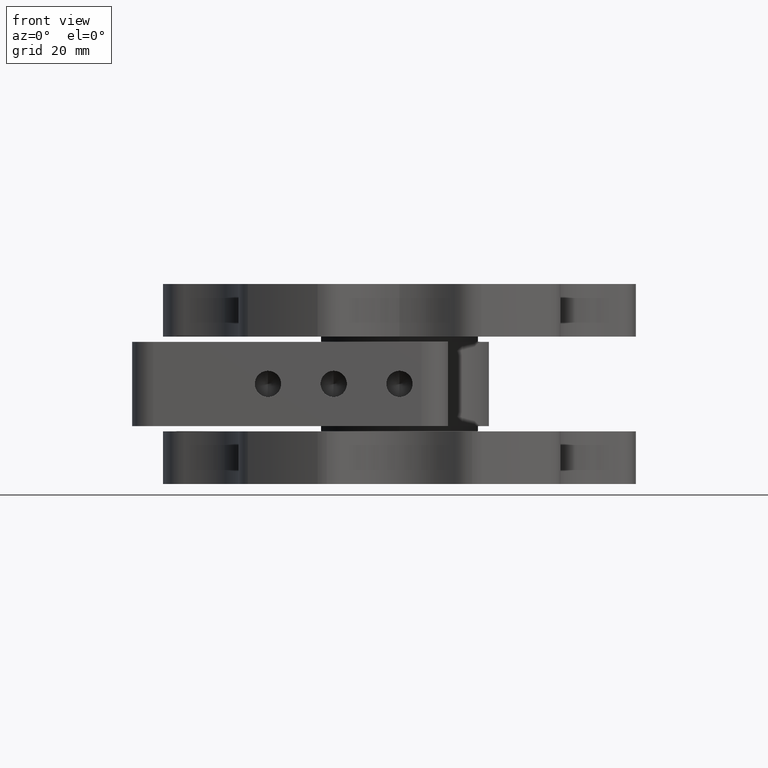
[diagram: clean part render]
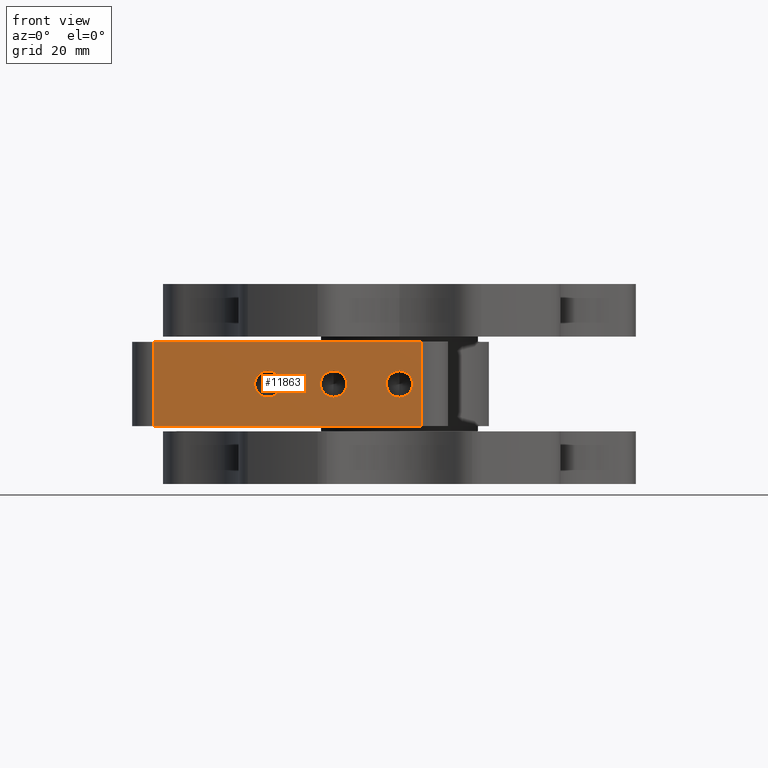
[diagram: same view with one face highlighted and labeled with its STEP entity id]
A machine part, front view. The second image highlights one B-rep face of the part: STEP entity #11863.
In plain terms, the highlighted planar face has unit normal (0, -1, 0).
Its self-contained STEP definition (entity closure, byte-faithful):
#33 = CIRCLE ( 'NONE', #21549, 2.499999999999990200 ) ;
#310 = ORIENTED_EDGE ( 'NONE', *, *, #25842, .F. ) ;
#646 = CIRCLE ( 'NONE', #11980, 2.499999999999990200 ) ;
#661 = FACE_BOUND ( 'NONE', #1816, .T. ) ;
#842 = PLANE ( 'NONE',  #18888 ) ;
#1381 = VERTEX_POINT ( 'NONE', #22801 ) ;
#1723 = DIRECTION ( 'NONE',  ( -0.0000000000000000000, -1.000000000000000000, -0.0000000000000000000 ) ) ;
#1816 = EDGE_LOOP ( 'NONE', ( #21279, #26525 ) ) ;
#2513 = EDGE_LOOP ( 'NONE', ( #17948, #13038 ) ) ;
#2527 = AXIS2_PLACEMENT_3D ( 'NONE', #14021, #1723, #13861 ) ;
#2799 = VECTOR ( 'NONE', #3921, 1000.000000000000000 ) ;
#2974 = CARTESIAN_POINT ( 'NONE',  ( 1.382336511052891000E-014, -50.79999999999997600, -10.49999999999999100 ) ) ;
#3161 = CARTESIAN_POINT ( 'NONE',  ( 4.199999999999978000, -50.79999999999997600, 0.0000000000000000000 ) ) ;
#3518 = CARTESIAN_POINT ( 'NONE',  ( -16.91161726340149600, -50.79999999999998300, -16.00000000000000000 ) ) ;
#3739 = VERTEX_POINT ( 'NONE', #17080 ) ;
#3786 = EDGE_CURVE ( 'NONE', #1381, #12466, #15868, .T. ) ;
#3921 = DIRECTION ( 'NONE',  ( 0.0000000000000000000, 0.0000000000000000000, 1.000000000000000000 ) ) ;
#3983 = VERTEX_POINT ( 'NONE', #14309 ) ;
#4335 = ORIENTED_EDGE ( 'NONE', *, *, #20112, .T. ) ;
#5787 = ORIENTED_EDGE ( 'NONE', *, *, #26093, .F. ) ;
#5826 = DIRECTION ( 'NONE',  ( 0.0000000000000000000, 0.0000000000000000000, -1.000000000000000000 ) ) ;
#6392 = CARTESIAN_POINT ( 'NONE',  ( -46.80000000000000400, -50.79999999999999000, -16.00000000000000000 ) ) ;
#6416 = CARTESIAN_POINT ( 'NONE',  ( 1.412952681031574800E-014, -50.79999999999997600, -5.500000000000009800 ) ) ;
#6476 = VERTEX_POINT ( 'NONE', #3161 ) ;
#7222 = DIRECTION ( 'NONE',  ( 0.0000000000000000000, 0.0000000000000000000, -1.000000000000000000 ) ) ;
#7434 = AXIS2_PLACEMENT_3D ( 'NONE', #24238, #16114, #5826 ) ;
#7980 = VERTEX_POINT ( 'NONE', #19849 ) ;
#8185 = EDGE_CURVE ( 'NONE', #26269, #18877, #22859, .T. ) ;
#8791 = CARTESIAN_POINT ( 'NONE',  ( -16.91161726340149600, -50.79999999999998300, 0.0000000000000000000 ) ) ;
#8835 = DIRECTION ( 'NONE',  ( 1.000000000000000000, 2.721134864277345600E-016, 0.0000000000000000000 ) ) ;
#8878 = VECTOR ( 'NONE', #23037, 1000.000000000000000 ) ;
#9056 = CARTESIAN_POINT ( 'NONE',  ( -24.99999999999998600, -50.79999999999997600, -5.500000000000008000 ) ) ;
#9300 = VECTOR ( 'NONE', #23475, 1000.000000000000000 ) ;
#9446 = CARTESIAN_POINT ( 'NONE',  ( -24.99999999999998600, -50.79999999999997600, -8.000000000000000000 ) ) ;
#9671 = FACE_BOUND ( 'NONE', #13826, .T. ) ;
#9774 = ORIENTED_EDGE ( 'NONE', *, *, #13442, .T. ) ;
#10735 = DIRECTION ( 'NONE',  ( -0.0000000000000000000, -1.000000000000000000, -0.0000000000000000000 ) ) ;
#11863 = ADVANCED_FACE ( 'NONE', ( #12833, #9671, #661, #13781 ), #842, .T. ) ;
#11980 = AXIS2_PLACEMENT_3D ( 'NONE', #17539, #19597, #7222 ) ;
#12207 = LINE ( 'NONE', #25028, #25923 ) ;
#12466 = VERTEX_POINT ( 'NONE', #9056 ) ;
#12481 = LINE ( 'NONE', #3518, #9300 ) ;
#12833 = FACE_BOUND ( 'NONE', #2513, .T. ) ;
#12851 = CARTESIAN_POINT ( 'NONE',  ( 1.382336511052891000E-014, -50.79999999999997600, -8.000000000000000000 ) ) ;
#13008 = CARTESIAN_POINT ( 'NONE',  ( -16.91161726340149600, -50.79999999999998300, -16.00000000000000000 ) ) ;
#13038 = ORIENTED_EDGE ( 'NONE', *, *, #22397, .F. ) ;
#13442 = EDGE_CURVE ( 'NONE', #15367, #19411, #12481, .T. ) ;
#13781 = FACE_OUTER_BOUND ( 'NONE', #17895, .T. ) ;
#13826 = EDGE_LOOP ( 'NONE', ( #20786, #5787 ) ) ;
#13861 = DIRECTION ( 'NONE',  ( 0.0000000000000000000, 0.0000000000000000000, -1.000000000000000000 ) ) ;
#14021 = CARTESIAN_POINT ( 'NONE',  ( -24.99999999999998600, -50.79999999999997600, -8.000000000000000000 ) ) ;
#14309 = CARTESIAN_POINT ( 'NONE',  ( -12.49999999999998600, -50.79999999999997600, -5.500000000000008000 ) ) ;
#14321 = CARTESIAN_POINT ( 'NONE',  ( 4.199999999999978000, -50.79999999999997600, -16.00000000000000000 ) ) ;
#14722 = DIRECTION ( 'NONE',  ( -0.0000000000000000000, -1.000000000000000000, -0.0000000000000000000 ) ) ;
#15234 = CARTESIAN_POINT ( 'NONE',  ( 4.199999999999978000, -50.79999999999997600, -16.00000000000000000 ) ) ;
#15294 = ORIENTED_EDGE ( 'NONE', *, *, #16360, .F. ) ;
#15367 = VERTEX_POINT ( 'NONE', #6392 ) ;
#15409 = DIRECTION ( 'NONE',  ( -0.0000000000000000000, -1.000000000000000000, -0.0000000000000000000 ) ) ;
#15868 = CIRCLE ( 'NONE', #20036, 2.499999999999992000 ) ;
#16114 = DIRECTION ( 'NONE',  ( -0.0000000000000000000, -1.000000000000000000, -0.0000000000000000000 ) ) ;
#16360 = EDGE_CURVE ( 'NONE', #3739, #6476, #26408, .T. ) ;
#17080 = CARTESIAN_POINT ( 'NONE',  ( -46.80000000000000400, -50.79999999999999000, 0.0000000000000000000 ) ) ;
#17269 = EDGE_CURVE ( 'NONE', #7980, #3983, #21223, .T. ) ;
#17539 = CARTESIAN_POINT ( 'NONE',  ( -12.49999999999998600, -50.79999999999997600, -7.999999999999998200 ) ) ;
#17895 = EDGE_LOOP ( 'NONE', ( #15294, #310, #9774, #4335 ) ) ;
#17948 = ORIENTED_EDGE ( 'NONE', *, *, #3786, .F. ) ;
#18626 = DIRECTION ( 'NONE',  ( 0.0000000000000000000, 0.0000000000000000000, 1.000000000000000000 ) ) ;
#18877 = VERTEX_POINT ( 'NONE', #2974 ) ;
#18888 = AXIS2_PLACEMENT_3D ( 'NONE', #13008, #25300, #8835 ) ;
#19411 = VERTEX_POINT ( 'NONE', #15234 ) ;
#19597 = DIRECTION ( 'NONE',  ( -0.0000000000000000000, -1.000000000000000000, -0.0000000000000000000 ) ) ;
#19849 = CARTESIAN_POINT ( 'NONE',  ( -12.49999999999998600, -50.79999999999997600, -10.49999999999998900 ) ) ;
#19871 = DIRECTION ( 'NONE',  ( 0.0000000000000000000, 0.0000000000000000000, -1.000000000000000000 ) ) ;
#19884 = AXIS2_PLACEMENT_3D ( 'NONE', #25150, #14722, #23184 ) ;
#20036 = AXIS2_PLACEMENT_3D ( 'NONE', #9446, #15409, #19871 ) ;
#20112 = EDGE_CURVE ( 'NONE', #19411, #6476, #25780, .T. ) ;
#20786 = ORIENTED_EDGE ( 'NONE', *, *, #17269, .F. ) ;
#21223 = CIRCLE ( 'NONE', #7434, 2.499999999999990200 ) ;
#21279 = ORIENTED_EDGE ( 'NONE', *, *, #25522, .F. ) ;
#21549 = AXIS2_PLACEMENT_3D ( 'NONE', #12851, #10735, #23276 ) ;
#22397 = EDGE_CURVE ( 'NONE', #12466, #1381, #22825, .T. ) ;
#22801 = CARTESIAN_POINT ( 'NONE',  ( -24.99999999999998600, -50.79999999999997600, -10.49999999999999100 ) ) ;
#22825 = CIRCLE ( 'NONE', #2527, 2.499999999999992000 ) ;
#22859 = CIRCLE ( 'NONE', #19884, 2.499999999999990200 ) ;
#23037 = DIRECTION ( 'NONE',  ( 1.000000000000000000, 2.721134864277345600E-016, 0.0000000000000000000 ) ) ;
#23184 = DIRECTION ( 'NONE',  ( 0.0000000000000000000, 0.0000000000000000000, -1.000000000000000000 ) ) ;
#23276 = DIRECTION ( 'NONE',  ( 0.0000000000000000000, 0.0000000000000000000, -1.000000000000000000 ) ) ;
#23475 = DIRECTION ( 'NONE',  ( 1.000000000000000000, 2.721134864277345600E-016, 0.0000000000000000000 ) ) ;
#24238 = CARTESIAN_POINT ( 'NONE',  ( -12.49999999999998600, -50.79999999999997600, -7.999999999999998200 ) ) ;
#25028 = CARTESIAN_POINT ( 'NONE',  ( -46.80000000000000400, -50.79999999999999000, -16.00000000000000000 ) ) ;
#25150 = CARTESIAN_POINT ( 'NONE',  ( 1.382336511052891000E-014, -50.79999999999997600, -8.000000000000000000 ) ) ;
#25300 = DIRECTION ( 'NONE',  ( 2.721134864277345600E-016, -1.000000000000000000, 0.0000000000000000000 ) ) ;
#25522 = EDGE_CURVE ( 'NONE', #18877, #26269, #33, .T. ) ;
#25780 = LINE ( 'NONE', #14321, #2799 ) ;
#25842 = EDGE_CURVE ( 'NONE', #15367, #3739, #12207, .T. ) ;
#25923 = VECTOR ( 'NONE', #18626, 1000.000000000000000 ) ;
#26093 = EDGE_CURVE ( 'NONE', #3983, #7980, #646, .T. ) ;
#26269 = VERTEX_POINT ( 'NONE', #6416 ) ;
#26408 = LINE ( 'NONE', #8791, #8878 ) ;
#26525 = ORIENTED_EDGE ( 'NONE', *, *, #8185, .F. ) ;